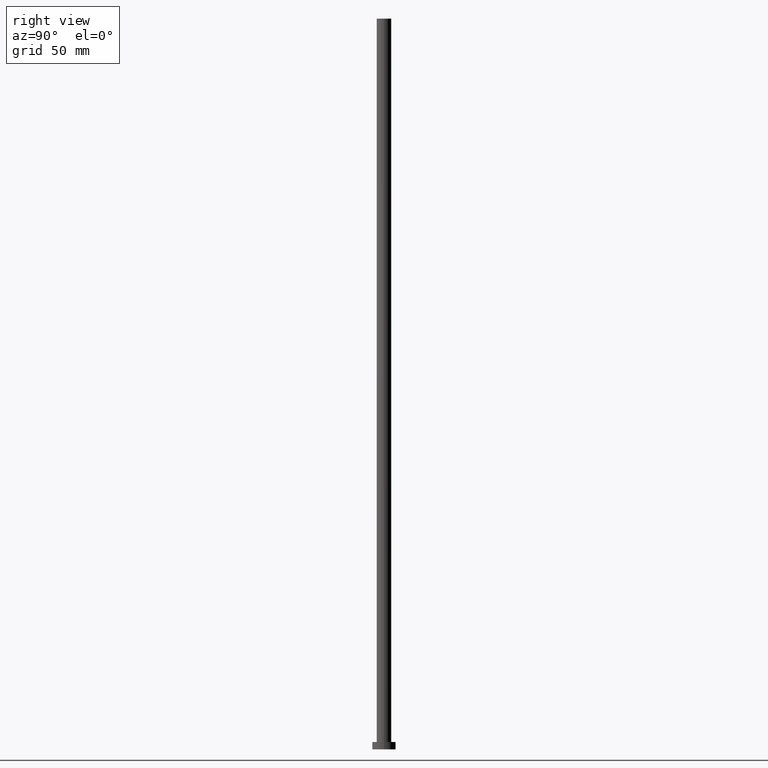
[diagram: clean part render]
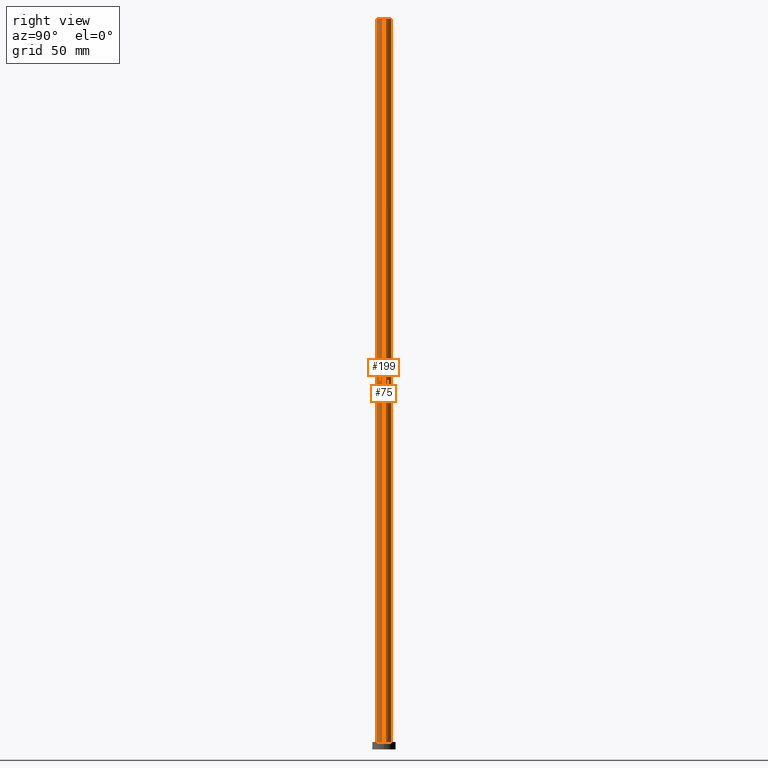
[diagram: same view with one multi-face feature highlighted, each face labeled with its STEP entity id]
A machine part, right view. The highlighted faces form ONE feature: a constant-radius fillet chain: 2 tangent blend faces with common blend radius 5 mm. The faces share edges in the B-rep.
Their STEP definitions:
[1] entity #75 (Cylinder):
#1 = CARTESIAN_POINT ( 'NONE',  ( -5.000000000000000888, 0.000000000000000000, 500.0000000000000000 ) ) ;
#5 = CARTESIAN_POINT ( 'NONE',  ( 5.000000000000000888, 6.123233995736767268E-16, 500.0000000000000000 ) ) ;
#10 = VERTEX_POINT ( 'NONE', #1 ) ;
#26 = CIRCLE ( 'NONE', #166, 5.000000000000000888 ) ;
#29 = DIRECTION ( 'NONE',  ( -0.000000000000000000, -0.000000000000000000, -1.000000000000000000 ) ) ;
#31 = AXIS2_PLACEMENT_3D ( 'NONE', #158, #140, #138 ) ;
#34 = VERTEX_POINT ( 'NONE', #184 ) ;
#37 = EDGE_LOOP ( 'NONE', ( #173, #252, #120, #116 ) ) ;
#51 = EDGE_CURVE ( 'NONE', #153, #34, #26, .T. ) ;
#55 = CARTESIAN_POINT ( 'NONE',  ( 5.000000000000000888, 6.123233995736767268E-16, 500.0000000000000000 ) ) ;
#56 = DIRECTION ( 'NONE',  ( 1.000000000000000000, 0.000000000000000000, 0.000000000000000000 ) ) ;
#60 = CARTESIAN_POINT ( 'NONE',  ( 0.000000000000000000, 0.000000000000000000, 5.000000000000000000 ) ) ;
#72 = VERTEX_POINT ( 'NONE', #55 ) ;
#73 = CYLINDRICAL_SURFACE ( 'NONE', #31, 5.000000000000000888 ) ;
#75 = ADVANCED_FACE ( 'NONE', ( #139 ), #73, .T. ) ;
#77 = DIRECTION ( 'NONE',  ( 0.000000000000000000, 0.000000000000000000, 1.000000000000000000 ) ) ;
#84 = AXIS2_PLACEMENT_3D ( 'NONE', #143, #179, #56 ) ;
#116 = ORIENTED_EDGE ( 'NONE', *, *, #246, .F. ) ;
#117 = EDGE_CURVE ( 'NONE', #72, #10, #174, .T. ) ;
#120 = ORIENTED_EDGE ( 'NONE', *, *, #51, .T. ) ;
#123 = CARTESIAN_POINT ( 'NONE',  ( 5.000000000000000888, 6.123233995736767268E-16, 5.000000000000000000 ) ) ;
#138 = DIRECTION ( 'NONE',  ( -1.000000000000000000, 0.000000000000000000, 0.000000000000000000 ) ) ;
#139 = FACE_OUTER_BOUND ( 'NONE', #37, .T. ) ;
#140 = DIRECTION ( 'NONE',  ( -0.000000000000000000, -0.000000000000000000, -1.000000000000000000 ) ) ;
#142 = DIRECTION ( 'NONE',  ( 1.000000000000000000, 0.000000000000000000, 0.000000000000000000 ) ) ;
#143 = CARTESIAN_POINT ( 'NONE',  ( 0.000000000000000000, 0.000000000000000000, 500.0000000000000000 ) ) ;
#148 = LINE ( 'NONE', #165, #249 ) ;
#153 = VERTEX_POINT ( 'NONE', #123 ) ;
#158 = CARTESIAN_POINT ( 'NONE',  ( 0.000000000000000000, 0.000000000000000000, 500.0000000000000000 ) ) ;
#165 = CARTESIAN_POINT ( 'NONE',  ( -5.000000000000000888, 0.000000000000000000, 500.0000000000000000 ) ) ;
#166 = AXIS2_PLACEMENT_3D ( 'NONE', #60, #77, #142 ) ;
#173 = ORIENTED_EDGE ( 'NONE', *, *, #117, .F. ) ;
#174 = CIRCLE ( 'NONE', #84, 5.000000000000000888 ) ;
#179 = DIRECTION ( 'NONE',  ( 0.000000000000000000, 0.000000000000000000, 1.000000000000000000 ) ) ;
#184 = CARTESIAN_POINT ( 'NONE',  ( -5.000000000000000888, 0.000000000000000000, 5.000000000000000000 ) ) ;
#211 = VECTOR ( 'NONE', #29, 1000.000000000000000 ) ;
#212 = LINE ( 'NONE', #5, #211 ) ;
#223 = EDGE_CURVE ( 'NONE', #72, #153, #212, .T. ) ;
#234 = DIRECTION ( 'NONE',  ( -0.000000000000000000, -0.000000000000000000, -1.000000000000000000 ) ) ;
#246 = EDGE_CURVE ( 'NONE', #10, #34, #148, .T. ) ;
#249 = VECTOR ( 'NONE', #234, 1000.000000000000000 ) ;
#252 = ORIENTED_EDGE ( 'NONE', *, *, #223, .T. ) ;
[2] entity #199 (Cylinder):
#1 = CARTESIAN_POINT ( 'NONE',  ( -5.000000000000000888, 0.000000000000000000, 500.0000000000000000 ) ) ;
#5 = CARTESIAN_POINT ( 'NONE',  ( 5.000000000000000888, 6.123233995736767268E-16, 500.0000000000000000 ) ) ;
#10 = VERTEX_POINT ( 'NONE', #1 ) ;
#13 = ORIENTED_EDGE ( 'NONE', *, *, #27, .T. ) ;
#15 = DIRECTION ( 'NONE',  ( 0.000000000000000000, 0.000000000000000000, 1.000000000000000000 ) ) ;
#27 = EDGE_CURVE ( 'NONE', #34, #153, #192, .T. ) ;
#29 = DIRECTION ( 'NONE',  ( -0.000000000000000000, -0.000000000000000000, -1.000000000000000000 ) ) ;
#30 = ORIENTED_EDGE ( 'NONE', *, *, #223, .F. ) ;
#33 = EDGE_LOOP ( 'NONE', ( #30, #219, #113, #13 ) ) ;
#34 = VERTEX_POINT ( 'NONE', #184 ) ;
#35 = AXIS2_PLACEMENT_3D ( 'NONE', #163, #239, #160 ) ;
#41 = FACE_OUTER_BOUND ( 'NONE', #33, .T. ) ;
#55 = CARTESIAN_POINT ( 'NONE',  ( 5.000000000000000888, 6.123233995736767268E-16, 500.0000000000000000 ) ) ;
#67 = EDGE_CURVE ( 'NONE', #10, #72, #235, .T. ) ;
#72 = VERTEX_POINT ( 'NONE', #55 ) ;
#74 = CARTESIAN_POINT ( 'NONE',  ( 0.000000000000000000, 0.000000000000000000, 500.0000000000000000 ) ) ;
#95 = DIRECTION ( 'NONE',  ( 1.000000000000000000, 0.000000000000000000, 0.000000000000000000 ) ) ;
#102 = DIRECTION ( 'NONE',  ( -1.000000000000000000, 0.000000000000000000, 0.000000000000000000 ) ) ;
#113 = ORIENTED_EDGE ( 'NONE', *, *, #246, .T. ) ;
#123 = CARTESIAN_POINT ( 'NONE',  ( 5.000000000000000888, 6.123233995736767268E-16, 5.000000000000000000 ) ) ;
#127 = CARTESIAN_POINT ( 'NONE',  ( 0.000000000000000000, 0.000000000000000000, 500.0000000000000000 ) ) ;
#145 = AXIS2_PLACEMENT_3D ( 'NONE', #74, #15, #95 ) ;
#148 = LINE ( 'NONE', #165, #249 ) ;
#153 = VERTEX_POINT ( 'NONE', #123 ) ;
#160 = DIRECTION ( 'NONE',  ( 1.000000000000000000, 0.000000000000000000, 0.000000000000000000 ) ) ;
#163 = CARTESIAN_POINT ( 'NONE',  ( 0.000000000000000000, 0.000000000000000000, 5.000000000000000000 ) ) ;
#165 = CARTESIAN_POINT ( 'NONE',  ( -5.000000000000000888, 0.000000000000000000, 500.0000000000000000 ) ) ;
#184 = CARTESIAN_POINT ( 'NONE',  ( -5.000000000000000888, 0.000000000000000000, 5.000000000000000000 ) ) ;
#192 = CIRCLE ( 'NONE', #35, 5.000000000000000888 ) ;
#199 = ADVANCED_FACE ( 'NONE', ( #41 ), #231, .T. ) ;
#208 = DIRECTION ( 'NONE',  ( -0.000000000000000000, -0.000000000000000000, -1.000000000000000000 ) ) ;
#211 = VECTOR ( 'NONE', #29, 1000.000000000000000 ) ;
#212 = LINE ( 'NONE', #5, #211 ) ;
#219 = ORIENTED_EDGE ( 'NONE', *, *, #67, .F. ) ;
#223 = EDGE_CURVE ( 'NONE', #72, #153, #212, .T. ) ;
#231 = CYLINDRICAL_SURFACE ( 'NONE', #254, 5.000000000000000888 ) ;
#234 = DIRECTION ( 'NONE',  ( -0.000000000000000000, -0.000000000000000000, -1.000000000000000000 ) ) ;
#235 = CIRCLE ( 'NONE', #145, 5.000000000000000888 ) ;
#239 = DIRECTION ( 'NONE',  ( 0.000000000000000000, 0.000000000000000000, 1.000000000000000000 ) ) ;
#246 = EDGE_CURVE ( 'NONE', #10, #34, #148, .T. ) ;
#249 = VECTOR ( 'NONE', #234, 1000.000000000000000 ) ;
#254 = AXIS2_PLACEMENT_3D ( 'NONE', #127, #208, #102 ) ;